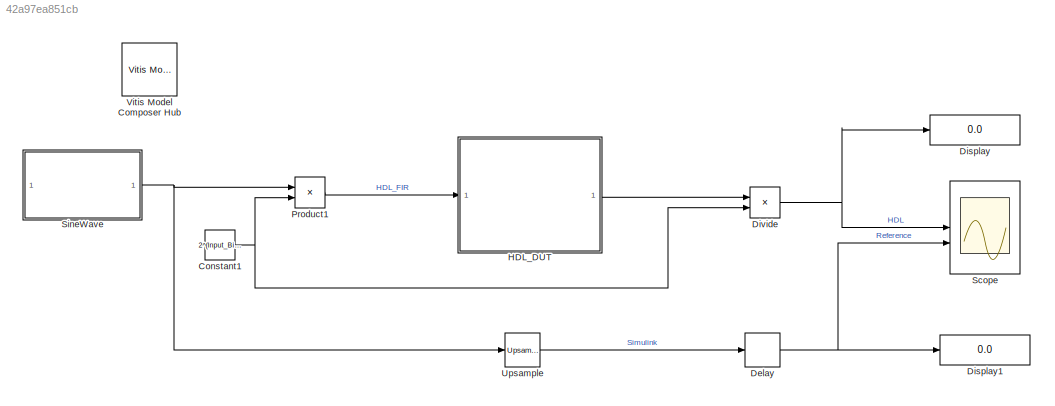
MODEL slx_42a97ea851cb
KIND model
CONFIG AbsTol = auto
CONFIG EnableMultiTasking = off
CONFIG FixedStep = auto
CONFIG InitFcn = Input_BinaryPoint = 24;\nGatewayIn_BinaryPoint = 12;\n\n\n
CONFIG MaxStep = auto
CONFIG MinStep = auto
CONFIG RelTol = 1e-3
CONFIG SampleTimeConstraint = Unconstrained
CONFIG SolverName = VariableStepAuto
CONFIG StartTime = 0.0
CONFIG StopTime = 1000
BLOCK [Constant] Constant1
  SampleTime = -1
  Value = 2^(Input_BinaryPoint-GatewayIn_BinaryPoint)
BLOCK [Delay] Delay
  InputPortMap = u0
BLOCK [Display] Display
  Decimation = 1
BLOCK [Display] Display1
  Decimation = 1
BLOCK [Product] Divide
  Inputs = */
  OutDataTypeStr = fixdt(1,16,24)
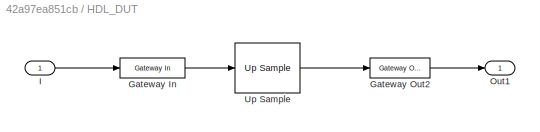
BLOCK [SubSystem] HDL_DUT
BLOCK [Reference] HDL_DUT/Gateway In  REF=hdlBasic/Gateway In
  SourceBlock = hdlBasic/Gateway In
  SourceType = Gateway In Block
BLOCK [Reference] HDL_DUT/Gateway Out2  REF=hdlBasic/Gateway Out
  SourceBlock = hdlBasic/Gateway Out
  SourceType = Gateway Out Block
BLOCK [Inport] HDL_DUT/I
BLOCK [Outport] HDL_DUT/Out1
BLOCK [Reference] HDL_DUT/Up Sample  REF=hdlBasic/Up Sample
  SourceBlock = hdlBasic/Up Sample
  SourceType = Up Sampler Block
BLOCK [Product] Product1
  OutDataTypeStr = fixdt(1,16,12)
BLOCK [Scope] Scope
  Floating = off
  NumInputPorts = 2
  ScopeSpecificationString = Simulink.scopes.TimeScopeBlockCfg('CurrentConfiguration', extmgr.ConfigurationSet(extmgr.Configuration('Core','General UI',true,'DisplayFullSourceName',false,'ShowMainToolbar',true),extmgr.Configuration('Sources','WiredSimulink',true,'DataLogging',false,'DataLoggingVariableName','ScopeData','DataLoggingLimitDataPoints',false,'DataLoggingMaxPoints','5000','DataLoggingDecimateData',false,'DataLoggin...<+1995ch>
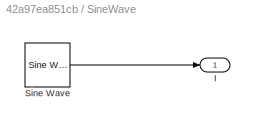
BLOCK [SubSystem] SineWave
BLOCK [Outport] SineWave/I
BLOCK [Reference] SineWave/Sine Wave  REF=dspsrcs4/Sine Wave
  SourceBlock = dspsrcs4/Sine Wave
  SourceType = Sine Wave
BLOCK [Reference] Upsample  REF=dspsigops/Upsample
  LibrarySourceBlock = dsphdlsupportsigops/Upsample
  SourceBlock = dspsigops/Upsample
  SourceType = Upsample
  UserDataPersistent = on
BLOCK [Reference] Vitis Model Composer Hub  REF=vmcUtilities/Vitis Model Composer Hub
  SourceBlock = vmcUtilities/Vitis Model Composer Hub
  SourceType = VMC Hub
  Tag = genX
  UserDataPersistent = on
NET Constant1:1 -> Divide:2, Product1:2
NET Delay:1 -> Display1:1, Scope:2
NET Divide:1 -> Display:1, Scope:1
LINE HDL_DUT/Gateway In:1 -> HDL_DUT/Up Sample:1
LINE HDL_DUT/Gateway Out2:1 -> HDL_DUT/Out1:1
LINE HDL_DUT/I:1 -> HDL_DUT/Gateway In:1
LINE HDL_DUT/Up Sample:1 -> HDL_DUT/Gateway Out2:1
LINE HDL_DUT:1 -> Divide:1
LINE Product1:1 -> HDL_DUT:1
LINE SineWave/Sine Wave:1 -> SineWave/I:1
NET SineWave:1 -> Product1:1, Upsample:1
LINE Upsample:1 -> Delay:1
note: NET lines group one-source signal fan-out (src -> all destinations, sorted); 1:1 wires keep LINE
